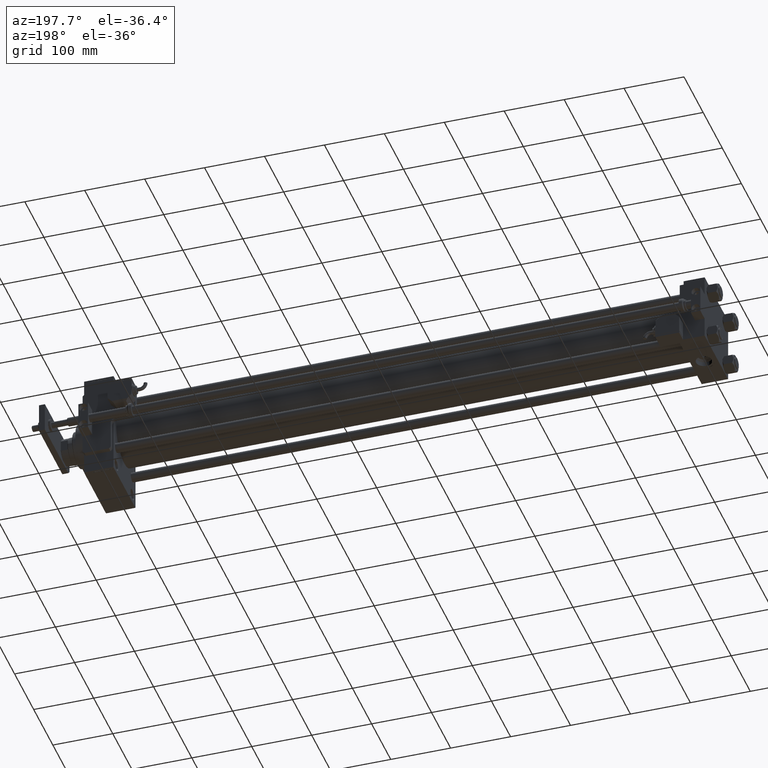
[diagram: clean part render]
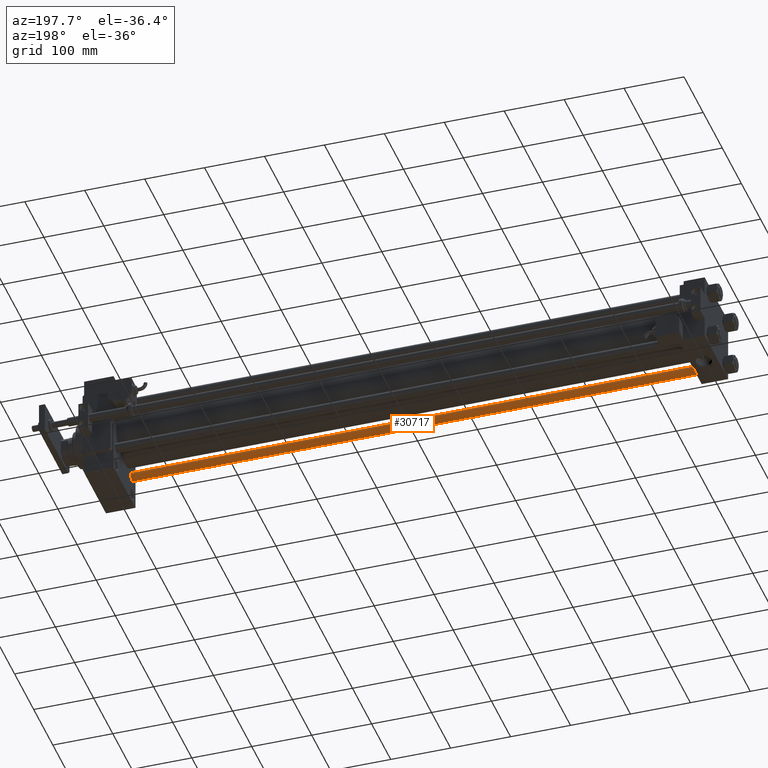
[diagram: same view with one face highlighted and labeled with its STEP entity id]
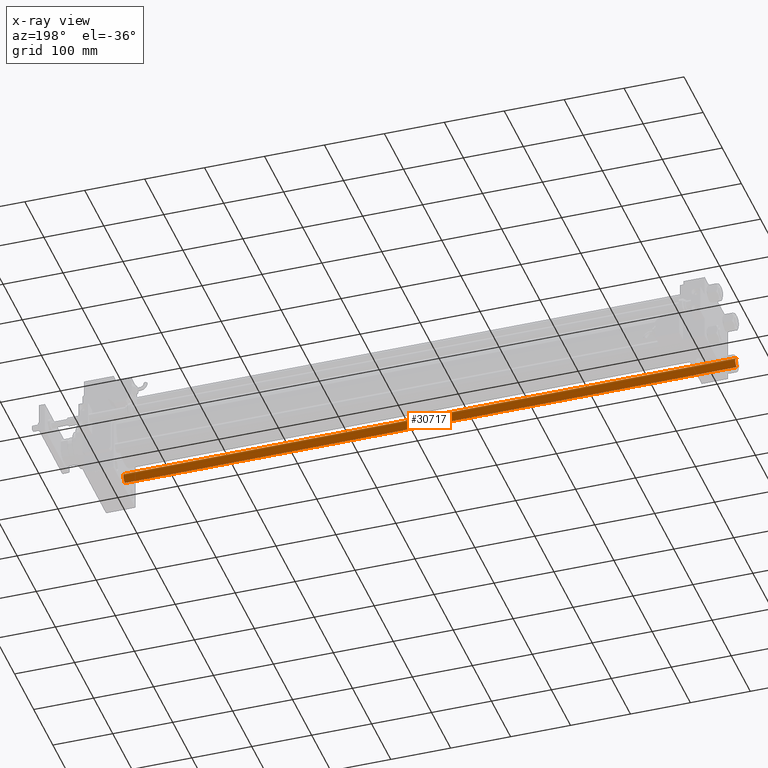
[diagram: x-ray of the same camera — body ghosted, the highlighted face saturated]
A machine part, auxiliary view. The second image highlights one B-rep face of the part: STEP entity #30717.
The next image is the same camera in x-ray: the body ghosted, the highlighted face saturated — about 0% of this face is hidden behind the body in this view.
In plain terms, the highlighted cylindrical surface (edge-blend (fillet) strip) has radius 8 mm, axis along (1, 0, 0).
Its self-contained STEP definition (entity closure, byte-faithful):
#2466 = EDGE_CURVE ( 'NONE', #38851, #35564, #21958, .T. ) ;
#3533 = FACE_OUTER_BOUND ( 'NONE', #8241, .T. ) ;
#4915 = VECTOR ( 'NONE', #55297, 1000.000000000000000 ) ;
#7201 = DIRECTION ( 'NONE',  ( -0.000000000000000000, -0.000000000000000000, -1.000000000000000000 ) ) ;
#7291 = DIRECTION ( 'NONE',  ( -0.000000000000000000, -0.000000000000000000, 1.000000000000000000 ) ) ;
#7922 = CARTESIAN_POINT ( 'NONE',  ( 0.000000000000000000, 0.000000000000000000, 1021.499999999999886 ) ) ;
#8153 = CARTESIAN_POINT ( 'NONE',  ( -8.000000000000000000, 0.000000000000000000, 1022.000000000000000 ) ) ;
#8209 = DIRECTION ( 'NONE',  ( 1.000000000000000000, 0.000000000000000000, 0.000000000000000000 ) ) ;
#8241 = EDGE_LOOP ( 'NONE', ( #36532, #43634, #14300, #49172 ) ) ;
#8392 = EDGE_CURVE ( 'NONE', #19950, #41187, #42839, .T. ) ;
#8669 = EDGE_CURVE ( 'NONE', #19950, #35564, #27844, .T. ) ;
#14300 = ORIENTED_EDGE ( 'NONE', *, *, #42679, .T. ) ;
#15333 = CYLINDRICAL_SURFACE ( 'NONE', #48446, 8.000000000000000000 ) ;
#16512 = CARTESIAN_POINT ( 'NONE',  ( 8.000000000000000000, 9.797174393178825657E-16, 1021.499999999999886 ) ) ;
#19950 = VERTEX_POINT ( 'NONE', #16512 ) ;
#20482 = CARTESIAN_POINT ( 'NONE',  ( 0.000000000000000000, 0.000000000000000000, 0.4999999999999449329 ) ) ;
#21958 = CIRCLE ( 'NONE', #50652, 8.000000000000000000 ) ;
#22814 = CARTESIAN_POINT ( 'NONE',  ( 8.000000000000000000, 9.797174393178825657E-16, 1022.000000000000000 ) ) ;
#24029 = CARTESIAN_POINT ( 'NONE',  ( 0.000000000000000000, 0.000000000000000000, 1022.000000000000000 ) ) ;
#27844 = LINE ( 'NONE', #22814, #44622 ) ;
#28517 = DIRECTION ( 'NONE',  ( -1.000000000000000000, 0.000000000000000000, 0.000000000000000000 ) ) ;
#30717 = ADVANCED_FACE ( 'NONE', ( #3533 ), #15333, .T. ) ;
#31150 = AXIS2_PLACEMENT_3D ( 'NONE', #7922, #46665, #8209 ) ;
#33600 = CARTESIAN_POINT ( 'NONE',  ( 8.000000000000000000, 9.797174393178825657E-16, 0.4999999999999449329 ) ) ;
#35564 = VERTEX_POINT ( 'NONE', #33600 ) ;
#36532 = ORIENTED_EDGE ( 'NONE', *, *, #8669, .F. ) ;
#38851 = VERTEX_POINT ( 'NONE', #54496 ) ;
#40499 = DIRECTION ( 'NONE',  ( -0.000000000000000000, -0.000000000000000000, -1.000000000000000000 ) ) ;
#41187 = VERTEX_POINT ( 'NONE', #45833 ) ;
#42679 = EDGE_CURVE ( 'NONE', #41187, #38851, #46611, .T. ) ;
#42839 = CIRCLE ( 'NONE', #31150, 8.000000000000000000 ) ;
#43634 = ORIENTED_EDGE ( 'NONE', *, *, #8392, .T. ) ;
#44622 = VECTOR ( 'NONE', #40499, 1000.000000000000000 ) ;
#45833 = CARTESIAN_POINT ( 'NONE',  ( -8.000000000000000000, 0.000000000000000000, 1021.499999999999886 ) ) ;
#46588 = DIRECTION ( 'NONE',  ( 1.000000000000000000, 0.000000000000000000, 0.000000000000000000 ) ) ;
#46611 = LINE ( 'NONE', #8153, #4915 ) ;
#46665 = DIRECTION ( 'NONE',  ( 0.000000000000000000, 0.000000000000000000, -1.000000000000000000 ) ) ;
#48446 = AXIS2_PLACEMENT_3D ( 'NONE', #24029, #7201, #28517 ) ;
#49172 = ORIENTED_EDGE ( 'NONE', *, *, #2466, .T. ) ;
#50652 = AXIS2_PLACEMENT_3D ( 'NONE', #20482, #7291, #46588 ) ;
#54496 = CARTESIAN_POINT ( 'NONE',  ( -8.000000000000000000, 0.000000000000000000, 0.4999999999999449329 ) ) ;
#55297 = DIRECTION ( 'NONE',  ( -0.000000000000000000, -0.000000000000000000, -1.000000000000000000 ) ) ;